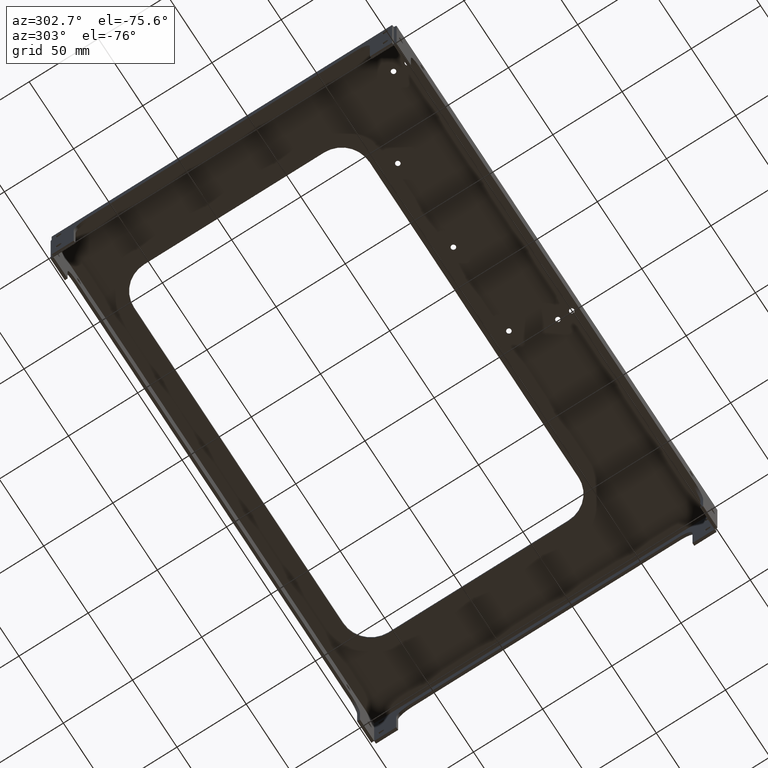
[diagram: clean part render]
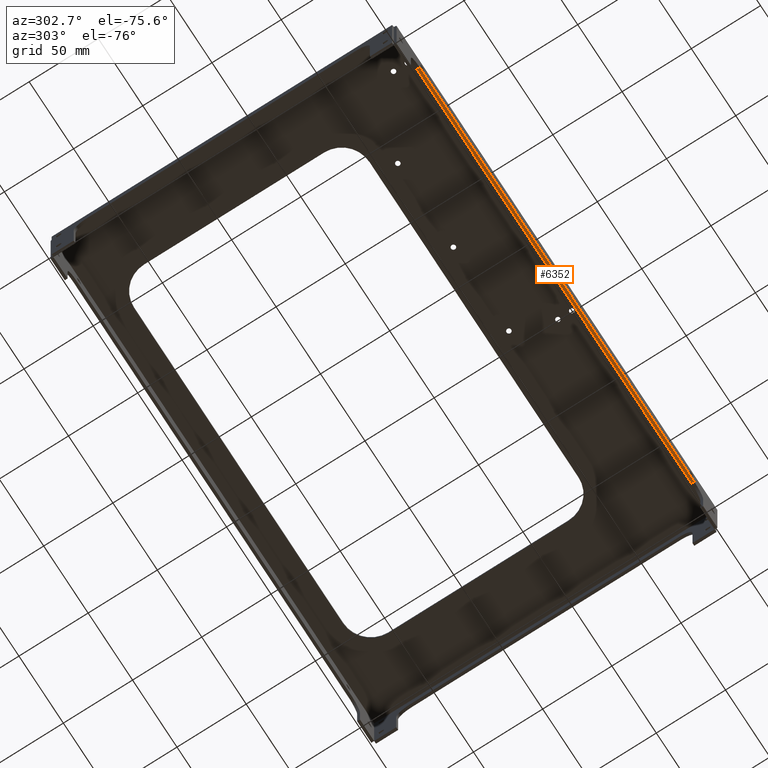
[diagram: same view with one face highlighted and labeled with its STEP entity id]
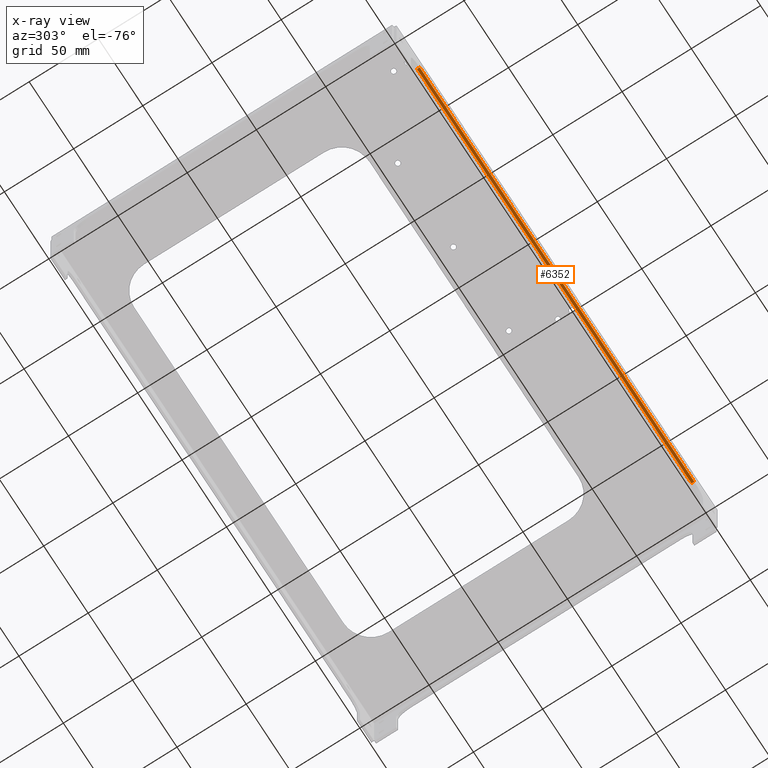
[diagram: x-ray of the same camera — body ghosted, the highlighted face saturated]
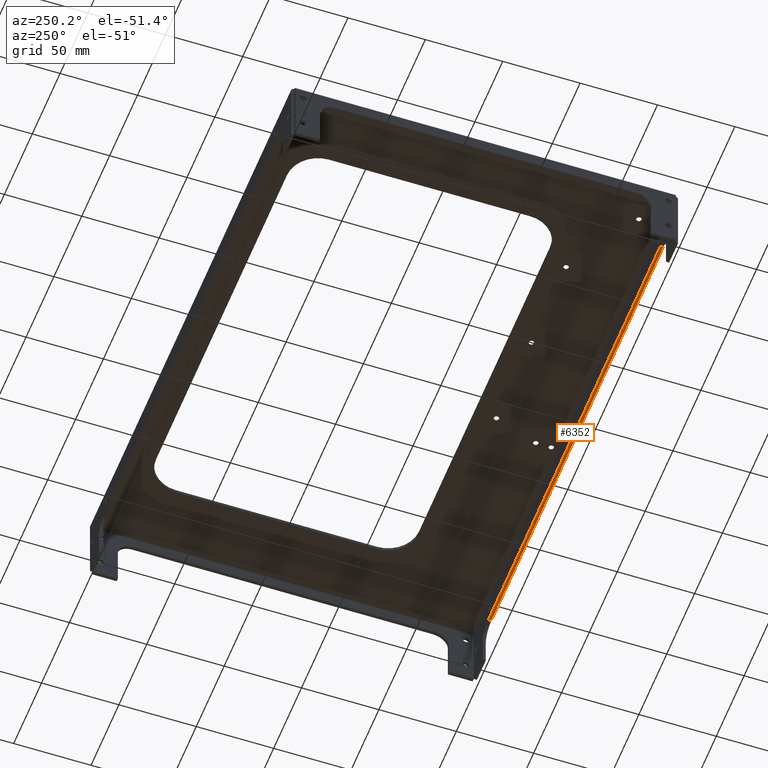
[diagram: same view with one face highlighted and labeled with its STEP entity id]
A machine part, auxiliary view. The second image highlights one B-rep face of the part: STEP entity #6352.
The next image is the same camera in x-ray: the body ghosted, the highlighted face saturated — about 0% of this face is hidden behind the body in this view.
A second angle (auxiliary view) of the same face is appended — the face is thin or edge-on in the first view.
In plain terms, the highlighted planar face has unit normal (0, 0, 1).
Its self-contained STEP definition (entity closure, byte-faithful):
#2492 = PLANE('',#2493);
#2493 = AXIS2_PLACEMENT_3D('',#2494,#2495,#2496);
#2494 = CARTESIAN_POINT('',(362.968,2.032,0.));
#2495 = DIRECTION('',(0.,1.,0.));
#2496 = DIRECTION('',(-1.,0.,0.));
#2812 = PLANE('',#2813);
#2813 = AXIS2_PLACEMENT_3D('',#2814,#2815,#2816);
#2814 = CARTESIAN_POINT('',(2.032,0.,0.));
#2815 = DIRECTION('',(0.,-1.,0.));
#2816 = DIRECTION('',(1.,0.,0.));
#3684 = VERTEX_POINT('',#3685);
#3685 = CARTESIAN_POINT('',(337.,2.032,-15.968));
#3700 = CYLINDRICAL_SURFACE('',#3701,10.);
#3701 = AXIS2_PLACEMENT_3D('',#3702,#3703,#3704);
#3702 = CARTESIAN_POINT('',(337.,250.,-25.968));
#3703 = DIRECTION('',(0.,1.,-2.2E-16));
#3704 = DIRECTION('',(-1.,0.,0.));
#3712 = EDGE_CURVE('',#3713,#3684,#3715,.T.);
#3713 = VERTEX_POINT('',#3714);
#3714 = CARTESIAN_POINT('',(28.,2.032,-15.968));
#3715 = SURFACE_CURVE('',#3716,(#3720,#3726),.PCURVE_S1.);
#3716 = LINE('',#3717,#3718);
#3717 = CARTESIAN_POINT('',(195.484,2.032,-15.968));
#3718 = VECTOR('',#3719,1.);
#3719 = DIRECTION('',(1.,0.,0.));
#3720 = PCURVE('',#2492,#3721);
#3721 = DEFINITIONAL_REPRESENTATION('',(#3722),#3725);
#3722 = B_SPLINE_CURVE_WITH_KNOTS('',1,(#3723,#3724),.UNSPECIFIED.,.F.,
  .F.,(2,2),(-198.384,172.416),.PIECEWISE_BEZIER_KNOTS.);
#3723 = CARTESIAN_POINT('',(365.868,-15.968));
#3724 = CARTESIAN_POINT('',(-4.932,-15.968));
#3725 = ( GEOMETRIC_REPRESENTATION_CONTEXT(2) 
PARAMETRIC_REPRESENTATION_CONTEXT() REPRESENTATION_CONTEXT('2D SPACE',''
  ) );
#3726 = PCURVE('',#3727,#3732);
#3727 = PLANE('',#3728);
#3728 = AXIS2_PLACEMENT_3D('',#3729,#3730,#3731);
#3729 = CARTESIAN_POINT('',(28.,250.,-15.968));
#3730 = DIRECTION('',(0.,2.2E-16,1.));
#3731 = DIRECTION('',(1.,0.,0.));
#3732 = DEFINITIONAL_REPRESENTATION('',(#3733),#3736);
#3733 = B_SPLINE_CURVE_WITH_KNOTS('',1,(#3734,#3735),.UNSPECIFIED.,.F.,
  .F.,(2,2),(-198.384,172.416),.PIECEWISE_BEZIER_KNOTS.);
#3734 = CARTESIAN_POINT('',(-30.9,-247.968));
#3735 = CARTESIAN_POINT('',(339.9,-247.968));
#3736 = ( GEOMETRIC_REPRESENTATION_CONTEXT(2) 
PARAMETRIC_REPRESENTATION_CONTEXT() REPRESENTATION_CONTEXT('2D SPACE',''
  ) );
#3755 = CYLINDRICAL_SURFACE('',#3756,10.);
#3756 = AXIS2_PLACEMENT_3D('',#3757,#3758,#3759);
#3757 = CARTESIAN_POINT('',(28.,250.,-25.968));
#3758 = DIRECTION('',(0.,1.,-2.2E-16));
#3759 = DIRECTION('',(-1.,0.,0.));
#4943 = VERTEX_POINT('',#4944);
#4944 = CARTESIAN_POINT('',(28.,0.,-15.968));
#4970 = EDGE_CURVE('',#4971,#4943,#4973,.T.);
#4971 = VERTEX_POINT('',#4972);
#4972 = CARTESIAN_POINT('',(337.,0.,-15.968));
#4973 = SURFACE_CURVE('',#4974,(#4978,#4984),.PCURVE_S1.);
#4974 = LINE('',#4975,#4976);
#4975 = CARTESIAN_POINT('',(15.016,0.,-15.968));
#4976 = VECTOR('',#4977,1.);
#4977 = DIRECTION('',(-1.,0.,0.));
#4978 = PCURVE('',#2812,#4979);
#4979 = DEFINITIONAL_REPRESENTATION('',(#4980),#4983);
#4980 = B_SPLINE_CURVE_WITH_KNOTS('',1,(#4981,#4982),.UNSPECIFIED.,.F.,
  .F.,(2,2),(-352.884,17.916),.PIECEWISE_BEZIER_KNOTS.);
#4981 = CARTESIAN_POINT('',(365.868,-15.968));
#4982 = CARTESIAN_POINT('',(-4.932,-15.968));
#4983 = ( GEOMETRIC_REPRESENTATION_CONTEXT(2) 
PARAMETRIC_REPRESENTATION_CONTEXT() REPRESENTATION_CONTEXT('2D SPACE',''
  ) );
#4984 = PCURVE('',#3727,#4985);
#4985 = DEFINITIONAL_REPRESENTATION('',(#4986),#4989);
#4986 = B_SPLINE_CURVE_WITH_KNOTS('',1,(#4987,#4988),.UNSPECIFIED.,.F.,
  .F.,(2,2),(-352.884,17.916),.PIECEWISE_BEZIER_KNOTS.);
#4987 = CARTESIAN_POINT('',(339.9,-250.));
#4988 = CARTESIAN_POINT('',(-30.9,-250.));
#4989 = ( GEOMETRIC_REPRESENTATION_CONTEXT(2) 
PARAMETRIC_REPRESENTATION_CONTEXT() REPRESENTATION_CONTEXT('2D SPACE',''
  ) );
#6303 = EDGE_CURVE('',#3684,#4971,#6304,.T.);
#6304 = SURFACE_CURVE('',#6305,(#6309,#6316),.PCURVE_S1.);
#6305 = LINE('',#6306,#6307);
#6306 = CARTESIAN_POINT('',(337.,250.,-15.968));
#6307 = VECTOR('',#6308,1.);
#6308 = DIRECTION('',(0.,-1.,2.2E-16));
#6309 = PCURVE('',#3700,#6310);
#6310 = DEFINITIONAL_REPRESENTATION('',(#6311),#6315);
#6311 = LINE('',#6312,#6313);
#6312 = CARTESIAN_POINT('',(1.570796326795,0.));
#6313 = VECTOR('',#6314,1.);
#6314 = DIRECTION('',(0.,-1.));
#6315 = ( GEOMETRIC_REPRESENTATION_CONTEXT(2) 
PARAMETRIC_REPRESENTATION_CONTEXT() REPRESENTATION_CONTEXT('2D SPACE',''
  ) );
#6316 = PCURVE('',#3727,#6317);
#6317 = DEFINITIONAL_REPRESENTATION('',(#6318),#6322);
#6318 = LINE('',#6319,#6320);
#6319 = CARTESIAN_POINT('',(309.,0.));
#6320 = VECTOR('',#6321,1.);
#6321 = DIRECTION('',(0.,-1.));
#6322 = ( GEOMETRIC_REPRESENTATION_CONTEXT(2) 
PARAMETRIC_REPRESENTATION_CONTEXT() REPRESENTATION_CONTEXT('2D SPACE',''
  ) );
#6332 = EDGE_CURVE('',#3713,#4943,#6333,.T.);
#6333 = SURFACE_CURVE('',#6334,(#6338,#6345),.PCURVE_S1.);
#6334 = LINE('',#6335,#6336);
#6335 = CARTESIAN_POINT('',(28.,250.,-15.968));
#6336 = VECTOR('',#6337,1.);
#6337 = DIRECTION('',(0.,-1.,2.2E-16));
#6338 = PCURVE('',#3755,#6339);
#6339 = DEFINITIONAL_REPRESENTATION('',(#6340),#6344);
#6340 = LINE('',#6341,#6342);
#6341 = CARTESIAN_POINT('',(1.570796326795,0.));
#6342 = VECTOR('',#6343,1.);
#6343 = DIRECTION('',(0.,-1.));
#6344 = ( GEOMETRIC_REPRESENTATION_CONTEXT(2) 
PARAMETRIC_REPRESENTATION_CONTEXT() REPRESENTATION_CONTEXT('2D SPACE',''
  ) );
#6345 = PCURVE('',#3727,#6346);
#6346 = DEFINITIONAL_REPRESENTATION('',(#6347),#6351);
#6347 = LINE('',#6348,#6349);
#6348 = CARTESIAN_POINT('',(0.,0.));
#6349 = VECTOR('',#6350,1.);
#6350 = DIRECTION('',(0.,-1.));
#6351 = ( GEOMETRIC_REPRESENTATION_CONTEXT(2) 
PARAMETRIC_REPRESENTATION_CONTEXT() REPRESENTATION_CONTEXT('2D SPACE',''
  ) );
#6352 = ADVANCED_FACE('',(#6353),#3727,.F.);
#6353 = FACE_BOUND('',#6354,.F.);
#6354 = EDGE_LOOP('',(#6355,#6356,#6357,#6358));
#6355 = ORIENTED_EDGE('',*,*,#3712,.F.);
#6356 = ORIENTED_EDGE('',*,*,#6332,.T.);
#6357 = ORIENTED_EDGE('',*,*,#4970,.F.);
#6358 = ORIENTED_EDGE('',*,*,#6303,.F.);